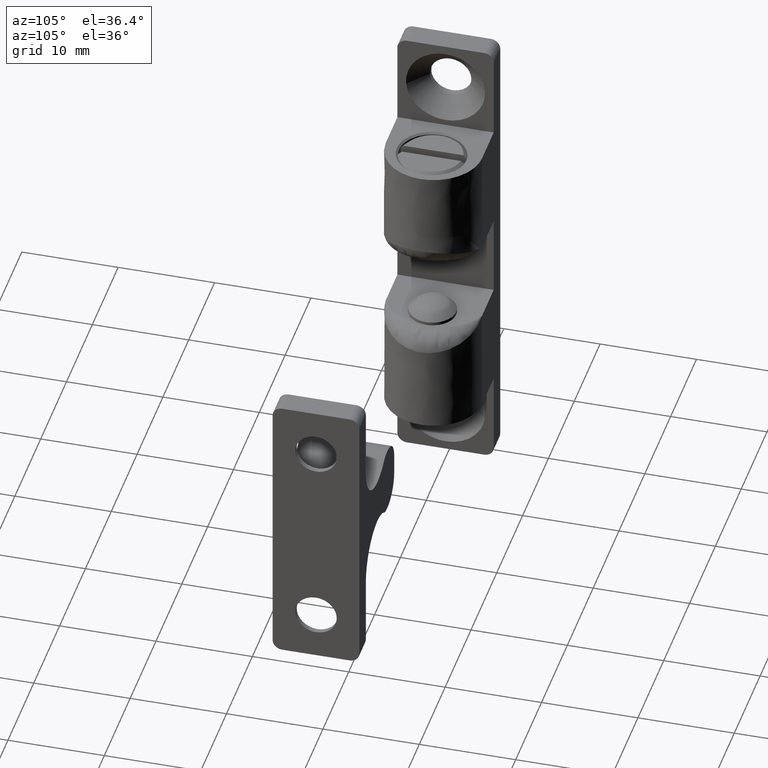
[diagram: clean part render]
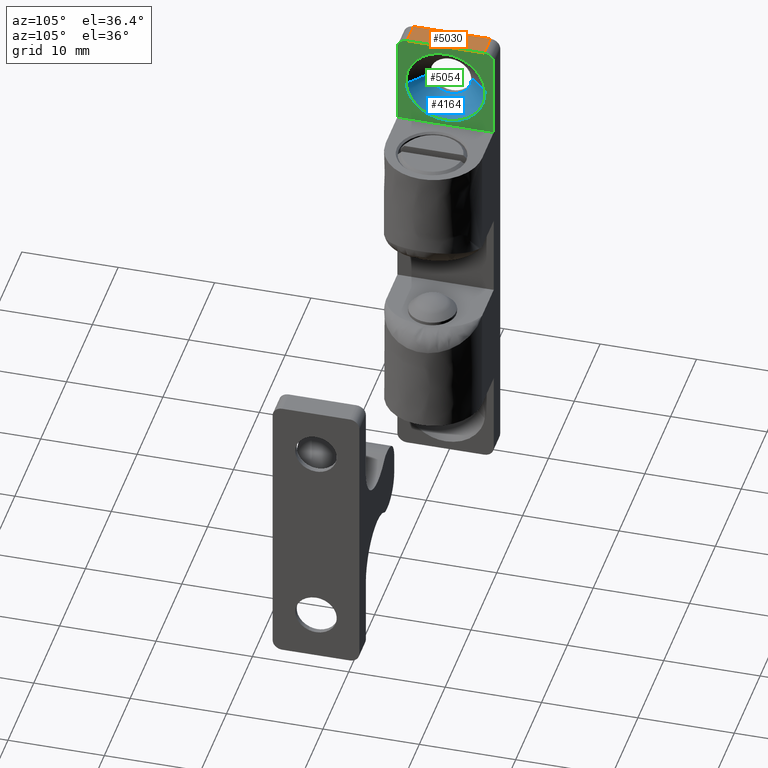
[diagram: same view with three faces highlighted in distinct colors, each labeled with its STEP entity id]
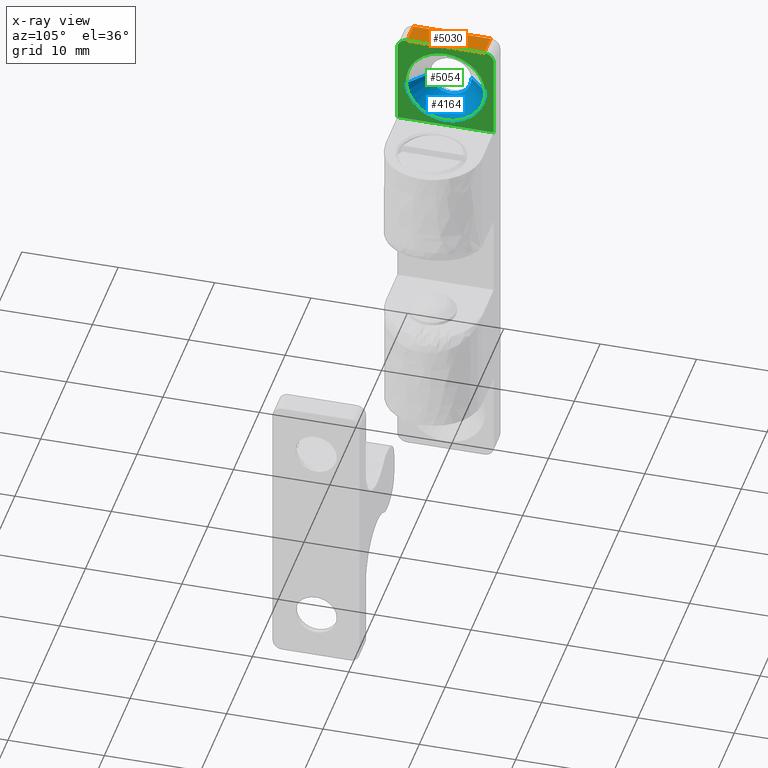
[diagram: x-ray of the same camera — body ghosted, the three highlighted faces saturated]
A machine part, auxiliary view with three faces highlighted in distinct colors.
The next image is the same camera in x-ray (body ghosted, the three faces saturated) — at least one of them is partly hidden behind the body in this view.
Their STEP definitions:

[orange] entity #5030 — the highlighted face is a freeform B-spline surface patch.
#4325=CARTESIAN_POINT('',(-25.0,4.0,2.500000000000000));
#4326=VERTEX_POINT('',#4325);
#4347=CARTESIAN_POINT('',(-25.0,4.0,0.0));
#4348=VERTEX_POINT('',#4347);
#4362=CARTESIAN_POINT('',(-25.0,4.0,2.500000000000000));
#4363=CARTESIAN_POINT('',(-25.0,4.0,0.0));
#4364=QUASI_UNIFORM_CURVE('',1,(#4362,#4363),.UNSPECIFIED.,.F.,.U.);
#4365=EDGE_CURVE('',#4326,#4348,#4364,.T.);
#4384=CARTESIAN_POINT('',(-25.0,-4.0,2.500000000000000));
#4385=VERTEX_POINT('',#4384);
#4401=CARTESIAN_POINT('',(-25.0,-4.0,0.0));
#4402=VERTEX_POINT('',#4401);
#4403=CARTESIAN_POINT('',(-25.0,-4.0,0.0));
#4404=CARTESIAN_POINT('',(-25.0,-4.0,2.500000000000000));
#4405=QUASI_UNIFORM_CURVE('',1,(#4403,#4404),.UNSPECIFIED.,.F.,.U.);
#4406=EDGE_CURVE('',#4402,#4385,#4405,.T.);
#4992=CARTESIAN_POINT('',(-25.0,-4.0,0.0));
#4993=CARTESIAN_POINT('',(-25.0,4.0,0.0));
#4994=QUASI_UNIFORM_CURVE('',1,(#4992,#4993),.UNSPECIFIED.,.F.,.U.);
#4995=EDGE_CURVE('',#4402,#4348,#4994,.T.);
#5015=CARTESIAN_POINT('',(-25.0,-4.399599984494448,2.624874995154515));
#5016=CARTESIAN_POINT('',(-25.0,-4.399599984494448,-0.124875062209740));
#5017=CARTESIAN_POINT('',(-25.0,4.399600199071169,2.624874995154515));
#5018=CARTESIAN_POINT('',(-25.0,4.399600199071169,-0.124875062209740));
#5019=B_SPLINE_SURFACE_WITH_KNOTS('',1,1,((#5015,#5017),(#5016,#5018)),.UNSPECIFIED.,.F.,.F.,.U.,(2,2),(2,2),(0.0,2.749750057364255),(0.0,8.799200183565617),.UNSPECIFIED.);
#5020=ORIENTED_EDGE('',*,*,#4995,.F.);
#5021=ORIENTED_EDGE('',*,*,#4406,.T.);
#5022=CARTESIAN_POINT('',(-25.0,-4.0,2.500000000000000));
#5023=CARTESIAN_POINT('',(-25.0,4.0,2.500000000000000));
#5024=QUASI_UNIFORM_CURVE('',1,(#5022,#5023),.UNSPECIFIED.,.F.,.U.);
#5025=EDGE_CURVE('',#4385,#4326,#5024,.T.);
#5026=ORIENTED_EDGE('',*,*,#5025,.T.);
#5027=ORIENTED_EDGE('',*,*,#4365,.T.);
#5028=EDGE_LOOP('',(#5020,#5021,#5026,#5027));
#5029=FACE_OUTER_BOUND('',#5028,.T.);
#5030=ADVANCED_FACE('',(#5029),#5019,.F.);

[blue] entity #4164 — the highlighted face is a freeform B-spline surface patch.
#3851=CARTESIAN_POINT('',(-19.754682046734320,2.135958590844679,0.550000000000010));
#3852=VERTEX_POINT('',#3851);
#3853=CARTESIAN_POINT('',(-17.850000000000001,0.0,0.550000000000010));
#3854=VERTEX_POINT('',#3853);
#3855=CARTESIAN_POINT('',(-19.754682046734324,2.135958590844679,0.550000000000010));
#3856=CARTESIAN_POINT('',(-17.850000000000005,1.917203085317397,0.550000000000010));
#3857=CARTESIAN_POINT('',(-17.850000000000001,0.0,0.550000000000010));
#3865=(BOUNDED_CURVE()B_SPLINE_CURVE(2,(#3855,#3856,#3857),.UNSPECIFIED.,.F.,.U.)B_SPLINE_CURVE_WITH_KNOTS((3,3),(0.269767876631869,0.500000000000000),.UNSPECIFIED.)CURVE()GEOMETRIC_REPRESENTATION_ITEM()RATIONAL_B_SPLINE_CURVE((0.957343498259473,0.730266289249808,1.0))REPRESENTATION_ITEM(''));
#3866=EDGE_CURVE('',#3852,#3854,#3865,.T.);
#3905=CARTESIAN_POINT('',(-19.859387465967519,-2.145335429340838,0.550000000020396));
#3906=VERTEX_POINT('',#3905);
#3912=CARTESIAN_POINT('',(-17.850000000000001,0.0,0.550000000000010));
#3913=CARTESIAN_POINT('',(-17.850002007832927,-2.013664281102855,0.550000000010203));
#3914=CARTESIAN_POINT('',(-19.859387465967519,-2.145335429340839,0.550000000020396));
#3922=(BOUNDED_CURVE()B_SPLINE_CURVE(2,(#3912,#3913,#3914),.UNSPECIFIED.,.F.,.U.)B_SPLINE_CURVE_WITH_KNOTS((3,3),(0.500000000000000,0.738580719736823),.UNSPECIFIED.)CURVE()GEOMETRIC_REPRESENTATION_ITEM()RATIONAL_B_SPLINE_CURVE((1.0,0.720485300197807,0.974465146442248))REPRESENTATION_ITEM(''));
#3923=EDGE_CURVE('',#3854,#3906,#3922,.T.);
#3954=CARTESIAN_POINT('',(-20.168687056130121,2.143372267542312,0.550000000040782));
#3955=VERTEX_POINT('',#3954);
#3956=CARTESIAN_POINT('',(-20.168687056130121,2.143372267542312,0.550000000040782));
#3957=CARTESIAN_POINT('',(-20.084473730379990,2.150000000000000,0.550000000000010));
#3958=CARTESIAN_POINT('',(-20.0,2.150000000000000,0.550000000000010));
#3959=CARTESIAN_POINT('',(-19.876939175136236,2.150000000000000,0.550000000000010));
#3960=CARTESIAN_POINT('',(-19.754682046734327,2.135958590844679,0.550000000000010));
#3968=(BOUNDED_CURVE()B_SPLINE_CURVE(2,(#3956,#3957,#3958,#3959,#3960),.UNSPECIFIED.,.F.,.U.)B_SPLINE_CURVE_WITH_KNOTS((3,2,3),(0.236331300582852,0.250000000000000,0.269767876631868),.UNSPECIFIED.)CURVE()GEOMETRIC_REPRESENTATION_ITEM()RATIONAL_B_SPLINE_CURVE((0.969723356067646,0.983986122522872,1.0,0.976840491936740,0.957343498259473))REPRESENTATION_ITEM(''));
#3969=EDGE_CURVE('',#3955,#3852,#3968,.T.);
#4057=CARTESIAN_POINT('',(-20.321682292612369,4.087361068312539,2.500000000016758));
#4058=VERTEX_POINT('',#4057);
#4059=CARTESIAN_POINT('',(-20.168687056130121,2.143372267542312,0.550000000040782));
#4060=CARTESIAN_POINT('',(-20.321682292612369,4.087361068312539,2.500000000016758));
#4061=QUASI_UNIFORM_CURVE('',1,(#4059,#4060),.UNSPECIFIED.,.F.,.U.);
#4062=EDGE_CURVE('',#3955,#4058,#4061,.T.);
#4079=CARTESIAN_POINT('',(-19.678317707387620,-4.087361068312539,2.500000000016758));
#4080=VERTEX_POINT('',#4079);
#4096=CARTESIAN_POINT('',(-19.859387465967519,-2.145335429340838,0.550000000020396));
#4097=CARTESIAN_POINT('',(-19.678317707387620,-4.087361068312539,2.500000000016758));
#4098=QUASI_UNIFORM_CURVE('',1,(#4096,#4097),.UNSPECIFIED.,.F.,.U.);
#4099=EDGE_CURVE('',#3906,#4080,#4098,.T.);
#4105=CARTESIAN_POINT('',(-19.891680833370852,-2.099222578766502,0.501250000000010));
#4106=CARTESIAN_POINT('',(-19.863568264375267,-2.097010071603324,0.501250000000010));
#4107=CARTESIAN_POINT('',(-17.740365277595139,-1.929910372608599,0.501250000000010));
#4108=CARTESIAN_POINT('',(-17.905227452493261,0.164862174898135,0.501250000000010));
#4109=CARTESIAN_POINT('',(-18.070089627391408,2.259634722404869,0.501250000000010));
#4110=CARTESIAN_POINT('',(-20.179699346968523,2.093604836740345,0.501250000000010));
#4111=CARTESIAN_POINT('',(-20.194449713505136,2.092443957717625,0.501250000000010));
#4112=CARTESIAN_POINT('',(-19.786069645907428,-4.145964593063832,2.549968750000001));
#4113=CARTESIAN_POINT('',(-19.730547322141160,-4.141594891416557,2.549968750000001));
#4114=CARTESIAN_POINT('',(-15.537221423250401,-3.811572985901974,2.549968750000001));
#4115=CARTESIAN_POINT('',(-15.862824218674209,0.325602795423817,2.549968750000001));
#4116=CARTESIAN_POINT('',(-16.188427014098028,4.462778576749607,2.549968750000001));
#4117=CARTESIAN_POINT('',(-20.354906210262826,4.134869552562172,2.549968750000001));
#4118=CARTESIAN_POINT('',(-20.384038184172645,4.132576816492300,2.549968750000001));
#4126=(BOUNDED_SURFACE()B_SPLINE_SURFACE(2,1,((#4105,#4112),(#4106,#4113),(#4107,#4114),(#4108,#4115),(#4109,#4116),(#4110,#4117),(#4111,#4118)),.UNSPECIFIED.,.F.,.F.,.U.)B_SPLINE_SURFACE_WITH_KNOTS((3,1,2,1,3),(2,2),(0.0,0.132720866092145,7.008614224790208,13.884507583488270,13.953584734819991),(0.0,2.897853535396302),.UNSPECIFIED.)GEOMETRIC_REPRESENTATION_ITEM()RATIONAL_B_SPLINE_SURFACE(((1.011307051940898,1.011307051940898),(1.005653525970449,1.005653525970449),(0.707106781186548,0.707106781186548),(1.0,1.0),(0.707106781186548,0.707106781186548),(1.002942487345941,1.002942487345941),(1.005884974691882,1.005884974691882)))REPRESENTATION_ITEM('')SURFACE());
#4127=ORIENTED_EDGE('',*,*,#3969,.T.);
#4128=ORIENTED_EDGE('',*,*,#3866,.T.);
#4129=ORIENTED_EDGE('',*,*,#3923,.T.);
#4130=ORIENTED_EDGE('',*,*,#4099,.T.);
#4131=CARTESIAN_POINT('',(-15.900000000000000,0.0,2.500000000000000));
#4132=VERTEX_POINT('',#4131);
#4133=CARTESIAN_POINT('',(-15.900000000000000,0.0,2.500000000000000));
#4134=CARTESIAN_POINT('',(-15.899999999999997,-3.790001015562608,2.500000000000000));
#4135=CARTESIAN_POINT('',(-19.678317707387617,-4.087361068312539,2.500000000016759));
#4143=(BOUNDED_CURVE()B_SPLINE_CURVE(2,(#4133,#4134,#4135),.UNSPECIFIED.,.F.,.U.)B_SPLINE_CURVE_WITH_KNOTS((3,3),(0.500000000000000,0.736331300622123),.UNSPECIFIED.)CURVE()GEOMETRIC_REPRESENTATION_ITEM()RATIONAL_B_SPLINE_CURVE((1.0,0.723120658617666,0.969723356149603))REPRESENTATION_ITEM(''));
#4144=EDGE_CURVE('',#4132,#4080,#4143,.T.);
#4145=ORIENTED_EDGE('',*,*,#4144,.F.);
#4146=CARTESIAN_POINT('',(-20.321682292612369,4.087361068312539,2.500000000016758));
#4147=CARTESIAN_POINT('',(-20.161089438858934,4.100000000000001,2.500000000000000));
#4148=CARTESIAN_POINT('',(-20.0,4.100000000000001,2.500000000000000));
#4149=CARTESIAN_POINT('',(-15.900000000000007,4.100000000000001,2.500000000000000));
#4150=CARTESIAN_POINT('',(-15.900000000000000,0.0,2.500000000000000));
#4158=(BOUNDED_CURVE()B_SPLINE_CURVE(2,(#4146,#4147,#4148,#4149,#4150),.UNSPECIFIED.,.F.,.U.)B_SPLINE_CURVE_WITH_KNOTS((3,2,3),(0.236331300622123,0.250000000000000,0.500000000000000),.UNSPECIFIED.)CURVE()GEOMETRIC_REPRESENTATION_ITEM()RATIONAL_B_SPLINE_CURVE((0.969723356149602,0.983986122568881,1.0,0.707106781186547,1.0))REPRESENTATION_ITEM(''));
#4159=EDGE_CURVE('',#4058,#4132,#4158,.T.);
#4160=ORIENTED_EDGE('',*,*,#4159,.F.);
#4161=ORIENTED_EDGE('',*,*,#4062,.F.);
#4162=EDGE_LOOP('',(#4127,#4128,#4129,#4130,#4145,#4160,#4161));
#4163=FACE_OUTER_BOUND('',#4162,.T.);
#4164=ADVANCED_FACE('',(#4163),#4126,.F.);

[green] entity #5054 — the highlighted face is a freeform B-spline surface patch.
#4057=CARTESIAN_POINT('',(-20.321682292612369,4.087361068312539,2.500000000016758));
#4058=VERTEX_POINT('',#4057);
#4064=CARTESIAN_POINT('',(-24.100000000000001,0.0,2.500000000000000));
#4065=VERTEX_POINT('',#4064);
#4066=CARTESIAN_POINT('',(-24.100000000000001,0.0,2.500000000000000));
#4067=CARTESIAN_POINT('',(-24.099999999999994,3.790001015562595,2.500000000000000));
#4068=CARTESIAN_POINT('',(-20.321682292612369,4.087361068312539,2.500000000016759));
#4076=(BOUNDED_CURVE()B_SPLINE_CURVE(2,(#4066,#4067,#4068),.UNSPECIFIED.,.F.,.U.)B_SPLINE_CURVE_WITH_KNOTS((3,3),(0.0,0.236331300622123),.UNSPECIFIED.)CURVE()GEOMETRIC_REPRESENTATION_ITEM()RATIONAL_B_SPLINE_CURVE((1.0,0.723120658617667,0.969723356149602))REPRESENTATION_ITEM(''));
#4077=EDGE_CURVE('',#4065,#4058,#4076,.T.);
#4079=CARTESIAN_POINT('',(-19.678317707387620,-4.087361068312539,2.500000000016758));
#4080=VERTEX_POINT('',#4079);
#4081=CARTESIAN_POINT('',(-19.678317707387620,-4.087361068312538,2.500000000016758));
#4082=CARTESIAN_POINT('',(-19.838910561141070,-4.100000000000001,2.500000000000000));
#4083=CARTESIAN_POINT('',(-20.0,-4.100000000000001,2.500000000000000));
#4084=CARTESIAN_POINT('',(-24.099999999999994,-4.100000000000001,2.500000000000000));
#4085=CARTESIAN_POINT('',(-24.100000000000001,0.0,2.500000000000000));
#4093=(BOUNDED_CURVE()B_SPLINE_CURVE(2,(#4081,#4082,#4083,#4084,#4085),.UNSPECIFIED.,.F.,.U.)B_SPLINE_CURVE_WITH_KNOTS((3,2,3),(0.736331300622123,0.750000000000000,1.0),.UNSPECIFIED.)CURVE()GEOMETRIC_REPRESENTATION_ITEM()RATIONAL_B_SPLINE_CURVE((0.969723356149602,0.983986122568880,1.0,0.707106781186547,1.0))REPRESENTATION_ITEM(''));
#4094=EDGE_CURVE('',#4080,#4065,#4093,.T.);
#4131=CARTESIAN_POINT('',(-15.900000000000000,0.0,2.500000000000000));
#4132=VERTEX_POINT('',#4131);
#4133=CARTESIAN_POINT('',(-15.900000000000000,0.0,2.500000000000000));
#4134=CARTESIAN_POINT('',(-15.899999999999997,-3.790001015562608,2.500000000000000));
#4135=CARTESIAN_POINT('',(-19.678317707387617,-4.087361068312539,2.500000000016759));
#4143=(BOUNDED_CURVE()B_SPLINE_CURVE(2,(#4133,#4134,#4135),.UNSPECIFIED.,.F.,.U.)B_SPLINE_CURVE_WITH_KNOTS((3,3),(0.500000000000000,0.736331300622123),.UNSPECIFIED.)CURVE()GEOMETRIC_REPRESENTATION_ITEM()RATIONAL_B_SPLINE_CURVE((1.0,0.723120658617666,0.969723356149603))REPRESENTATION_ITEM(''));
#4144=EDGE_CURVE('',#4132,#4080,#4143,.T.);
#4146=CARTESIAN_POINT('',(-20.321682292612369,4.087361068312539,2.500000000016758));
#4147=CARTESIAN_POINT('',(-20.161089438858934,4.100000000000001,2.500000000000000));
#4148=CARTESIAN_POINT('',(-20.0,4.100000000000001,2.500000000000000));
#4149=CARTESIAN_POINT('',(-15.900000000000007,4.100000000000001,2.500000000000000));
#4150=CARTESIAN_POINT('',(-15.900000000000000,0.0,2.500000000000000));
#4158=(BOUNDED_CURVE()B_SPLINE_CURVE(2,(#4146,#4147,#4148,#4149,#4150),.UNSPECIFIED.,.F.,.U.)B_SPLINE_CURVE_WITH_KNOTS((3,2,3),(0.236331300622123,0.250000000000000,0.500000000000000),.UNSPECIFIED.)CURVE()GEOMETRIC_REPRESENTATION_ITEM()RATIONAL_B_SPLINE_CURVE((0.969723356149602,0.983986122568881,1.0,0.707106781186547,1.0))REPRESENTATION_ITEM(''));
#4159=EDGE_CURVE('',#4058,#4132,#4158,.T.);
#4323=CARTESIAN_POINT('',(-24.0,5.0,2.500000000000000));
#4324=VERTEX_POINT('',#4323);
#4325=CARTESIAN_POINT('',(-25.0,4.0,2.500000000000000));
#4326=VERTEX_POINT('',#4325);
#4327=CARTESIAN_POINT('',(-24.0,5.0,2.500000000000000));
#4328=CARTESIAN_POINT('',(-25.0,5.000000000000001,2.500000000000000));
#4329=CARTESIAN_POINT('',(-25.0,4.0,2.500000000000000));
#4337=(BOUNDED_CURVE()B_SPLINE_CURVE(2,(#4327,#4328,#4329),.UNSPECIFIED.,.F.,.U.)CURVE()GEOMETRIC_REPRESENTATION_ITEM()QUASI_UNIFORM_CURVE()RATIONAL_B_SPLINE_CURVE((1.0,0.707106781186548,1.0))REPRESENTATION_ITEM(''));
#4338=EDGE_CURVE('',#4324,#4326,#4337,.T.);
#4384=CARTESIAN_POINT('',(-25.0,-4.0,2.500000000000000));
#4385=VERTEX_POINT('',#4384);
#4386=CARTESIAN_POINT('',(-24.0,-5.0,2.500000000000000));
#4387=VERTEX_POINT('',#4386);
#4388=CARTESIAN_POINT('',(-25.0,-4.0,2.500000000000000));
#4389=CARTESIAN_POINT('',(-25.0,-5.000000000000001,2.500000000000000));
#4390=CARTESIAN_POINT('',(-24.0,-5.0,2.500000000000000));
#4398=(BOUNDED_CURVE()B_SPLINE_CURVE(2,(#4388,#4389,#4390),.UNSPECIFIED.,.F.,.U.)CURVE()GEOMETRIC_REPRESENTATION_ITEM()QUASI_UNIFORM_CURVE()RATIONAL_B_SPLINE_CURVE((1.0,0.707106781186548,1.0))REPRESENTATION_ITEM(''));
#4399=EDGE_CURVE('',#4385,#4387,#4398,.T.);
#4782=CARTESIAN_POINT('',(-15.300000000000001,5.0,2.500000000000000));
#4783=VERTEX_POINT('',#4782);
#4784=CARTESIAN_POINT('',(-15.300000000000001,5.0,2.500000000000000));
#4785=CARTESIAN_POINT('',(-24.0,5.0,2.500000000000000));
#4786=QUASI_UNIFORM_CURVE('',1,(#4784,#4785),.UNSPECIFIED.,.F.,.U.);
#4787=EDGE_CURVE('',#4783,#4324,#4786,.T.);
#4867=CARTESIAN_POINT('',(-15.300000000000001,-5.0,2.500000000000000));
#4868=VERTEX_POINT('',#4867);
#4874=CARTESIAN_POINT('',(-15.300000000000001,-5.0,2.500000000000000));
#4875=CARTESIAN_POINT('',(-24.0,-5.0,2.500000000000000));
#4876=QUASI_UNIFORM_CURVE('',1,(#4874,#4875),.UNSPECIFIED.,.F.,.U.);
#4877=EDGE_CURVE('',#4868,#4387,#4876,.T.);
#5022=CARTESIAN_POINT('',(-25.0,-4.0,2.500000000000000));
#5023=CARTESIAN_POINT('',(-25.0,4.0,2.500000000000000));
#5024=QUASI_UNIFORM_CURVE('',1,(#5022,#5023),.UNSPECIFIED.,.F.,.U.);
#5025=EDGE_CURVE('',#4385,#4326,#5024,.T.);
#5031=CARTESIAN_POINT('',(-14.815485200913800,-5.499499980618060,2.500000000000000));
#5032=CARTESIAN_POINT('',(-25.484515232709992,-5.499499980618060,2.500000000000000));
#5033=CARTESIAN_POINT('',(-14.815485200913800,5.499500248838961,2.500000000000000));
#5034=CARTESIAN_POINT('',(-25.484515232709992,5.499500248838961,2.500000000000000));
#5035=B_SPLINE_SURFACE_WITH_KNOTS('',1,1,((#5031,#5033),(#5032,#5034)),.UNSPECIFIED.,.F.,.F.,.U.,(2,2),(2,2),(0.0,10.669030031796190),(0.0,10.999000229457019),.UNSPECIFIED.);
#5036=ORIENTED_EDGE('',*,*,#5025,.F.);
#5037=ORIENTED_EDGE('',*,*,#4399,.T.);
#5038=ORIENTED_EDGE('',*,*,#4877,.F.);
#5039=CARTESIAN_POINT('',(-15.300000000000001,-5.0,2.500000000000000));
#5040=CARTESIAN_POINT('',(-15.300000000000001,5.0,2.500000000000000));
#5041=QUASI_UNIFORM_CURVE('',1,(#5039,#5040),.UNSPECIFIED.,.F.,.U.);
#5042=EDGE_CURVE('',#4868,#4783,#5041,.T.);
#5043=ORIENTED_EDGE('',*,*,#5042,.T.);
#5044=ORIENTED_EDGE('',*,*,#4787,.T.);
#5045=ORIENTED_EDGE('',*,*,#4338,.T.);
#5046=EDGE_LOOP('',(#5036,#5037,#5038,#5043,#5044,#5045));
#5047=FACE_OUTER_BOUND('',#5046,.T.);
#5048=ORIENTED_EDGE('',*,*,#4144,.T.);
#5049=ORIENTED_EDGE('',*,*,#4094,.T.);
#5050=ORIENTED_EDGE('',*,*,#4077,.T.);
#5051=ORIENTED_EDGE('',*,*,#4159,.T.);
#5052=EDGE_LOOP('',(#5048,#5049,#5050,#5051));
#5053=FACE_BOUND('',#5052,.T.);
#5054=ADVANCED_FACE('',(#5047,#5053),#5035,.F.);